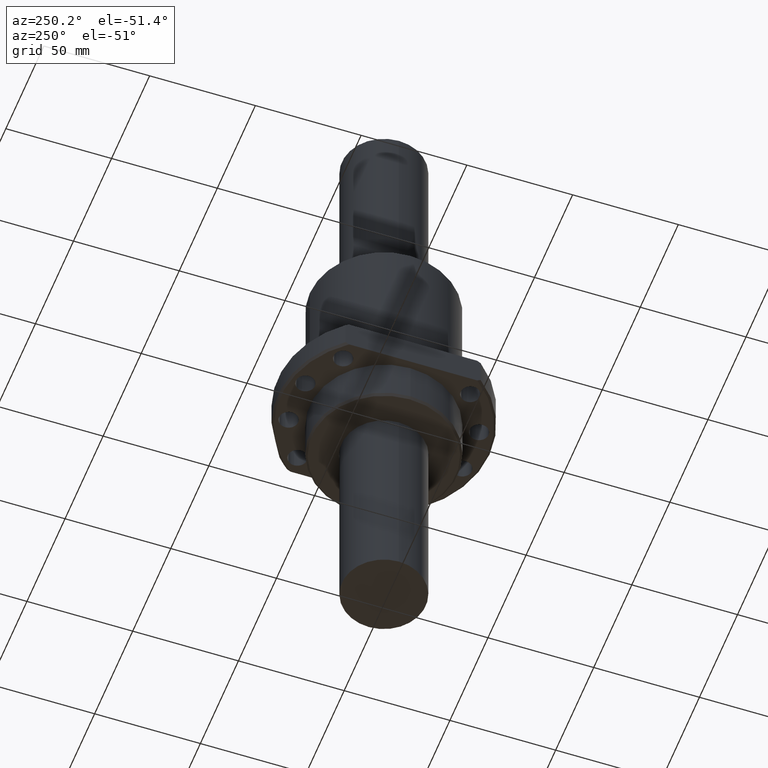
[diagram: clean part render]
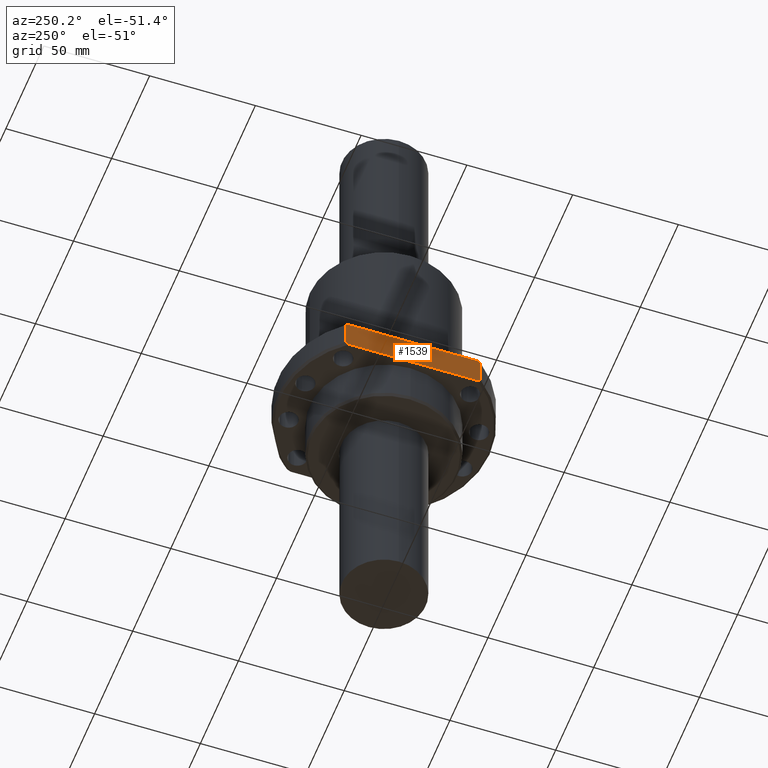
[diagram: same view with one face highlighted and labeled with its STEP entity id]
A machine part, auxiliary view. The second image highlights one B-rep face of the part: STEP entity #1539.
In plain terms, the highlighted planar face has unit normal (-1, 0, 0).
Its self-contained STEP definition (entity closure, byte-faithful):
#2 = VERTEX_POINT ( 'NONE', #1906 ) ;
#6 = DIRECTION ( 'NONE',  ( -0.0000000000000000000, -0.0000000000000000000, -1.000000000000000000 ) ) ;
#7 = CARTESIAN_POINT ( 'NONE',  ( 38.50000704099999600, -31.90218444000000300, -28.00000000000000400 ) ) ;
#10 = LINE ( 'NONE', #7, #1837 ) ;
#153 = EDGE_CURVE ( 'NONE', #668, #1543, #1781, .T. ) ;
#178 = CARTESIAN_POINT ( 'NONE',  ( 38.50000704099999600, -30.31088018918208600, -21.00000000000000000 ) ) ;
#180 = DIRECTION ( 'NONE',  ( 0.0000000000000000000, 1.000000000000000000, 0.0000000000000000000 ) ) ;
#182 = DIRECTION ( 'NONE',  ( 1.000000000000000000, 0.0000000000000000000, 0.0000000000000000000 ) ) ;
#184 = CARTESIAN_POINT ( 'NONE',  ( 38.50000704099999600, -31.90218444000000300, -35.00000000000000000 ) ) ;
#190 = PLANE ( 'NONE',  #1601 ) ;
#196 = B_SPLINE_CURVE_WITH_KNOTS ( 'NONE', 3,
 ( #1304, #1301, #1298, #1293 ),
 .UNSPECIFIED., .F., .F.,
 ( 4, 4 ),
 ( 2.649176163449070200E-012, 0.001879429564113751300 ),
 .UNSPECIFIED. ) ;
#209 = B_SPLINE_CURVE_WITH_KNOTS ( 'NONE', 3,
 ( #379, #374, #372, #370 ),
 .UNSPECIFIED., .F., .F.,
 ( 4, 4 ),
 ( 0.0000000000000000000, 0.001879427666044103000 ),
 .UNSPECIFIED. ) ;
#345 = CARTESIAN_POINT ( 'NONE',  ( 38.50000704099999600, 30.31088018918209700, -21.00000000000001100 ) ) ;
#347 = CARTESIAN_POINT ( 'NONE',  ( 38.50000704099999600, 30.84367402019713100, -21.32958061179821400 ) ) ;
#349 = CARTESIAN_POINT ( 'NONE',  ( 38.50000704099999600, 31.37404221249887100, -21.66302130742798600 ) ) ;
#352 = CARTESIAN_POINT ( 'NONE',  ( 38.50000679248939400, 31.90218651018611600, -22.00000058702431400 ) ) ;
#369 = VECTOR ( 'NONE', #1201, 1000.000000000000000 ) ;
#370 = CARTESIAN_POINT ( 'NONE',  ( 38.50000704099999600, -31.90218453886194200, -21.99999963708240000 ) ) ;
#372 = CARTESIAN_POINT ( 'NONE',  ( 38.50000704099999600, -31.37404085371158000, -21.66302045297273400 ) ) ;
#374 = CARTESIAN_POINT ( 'NONE',  ( 38.50000704189263700, -30.84367337605393500, -21.32958021281282200 ) ) ;
#379 = CARTESIAN_POINT ( 'NONE',  ( 38.50000704099999600, -30.31088018918208600, -21.00000000000000000 ) ) ;
#492 = EDGE_LOOP ( 'NONE', ( #1517, #1546, #1564, #1508, #1580, #1611, #1598, #1634 ) ) ;
#530 = VERTEX_POINT ( 'NONE', #1547 ) ;
#571 = DIRECTION ( 'NONE',  ( 0.0000000000000000000, 0.0000000000000000000, 1.000000000000000000 ) ) ;
#578 = CARTESIAN_POINT ( 'NONE',  ( 38.50000654397880600, 31.90218638453467300, -28.00000031550000300 ) ) ;
#581 = LINE ( 'NONE', #578, #924 ) ;
#628 = EDGE_CURVE ( 'NONE', #530, #1975, #196, .T. ) ;
#668 = VERTEX_POINT ( 'NONE', #1250 ) ;
#756 = EDGE_CURVE ( 'NONE', #2, #530, #1212, .T. ) ;
#794 = EDGE_CURVE ( 'NONE', #1045, #2, #1636, .T. ) ;
#804 = VERTEX_POINT ( 'NONE', #1089 ) ;
#853 = CARTESIAN_POINT ( 'NONE',  ( 38.50000704099999600, -31.90218511236125900, -34.00000042899586800 ) ) ;
#923 = VECTOR ( 'NONE', #1775, 1000.000000000000000 ) ;
#924 = VECTOR ( 'NONE', #571, 1000.000000000000000 ) ;
#1019 = FACE_OUTER_BOUND ( 'NONE', #492, .T. ) ;
#1045 = VERTEX_POINT ( 'NONE', #853 ) ;
#1089 = CARTESIAN_POINT ( 'NONE',  ( 38.50000704099999600, -31.90218453886194200, -21.99999963708240000 ) ) ;
#1120 = CARTESIAN_POINT ( 'NONE',  ( 38.50000704099999600, -30.31088019246431700, -34.99999999796963800 ) ) ;
#1123 = CARTESIAN_POINT ( 'NONE',  ( 38.50000704099999600, -30.84367342524107200, -34.67041975620517700 ) ) ;
#1124 = CARTESIAN_POINT ( 'NONE',  ( 38.50000703690807300, -31.37404095224378200, -34.33697948247385800 ) ) ;
#1131 = CARTESIAN_POINT ( 'NONE',  ( 38.50000704099999600, -31.90218511236125900, -34.00000042899586800 ) ) ;
#1201 = DIRECTION ( 'NONE',  ( 0.0000000000000000000, 1.000000000000000000, 0.0000000000000000000 ) ) ;
#1208 = CARTESIAN_POINT ( 'NONE',  ( 38.50000704099999600, 1.166999996637940700E-006, -35.00000000000000000 ) ) ;
#1212 = LINE ( 'NONE', #1208, #369 ) ;
#1246 = EDGE_CURVE ( 'NONE', #1975, #1977, #581, .T. ) ;
#1250 = CARTESIAN_POINT ( 'NONE',  ( 38.50000704099999600, 30.31088018918209700, -21.00000000000001100 ) ) ;
#1293 = CARTESIAN_POINT ( 'NONE',  ( 38.50000679248939400, 31.90218631197631200, -33.99999985494221700 ) ) ;
#1298 = CARTESIAN_POINT ( 'NONE',  ( 38.50000704099999600, 31.37404192677675100, -34.33697887239255000 ) ) ;
#1301 = CARTESIAN_POINT ( 'NONE',  ( 38.50000704162721400, 30.84367390101818200, -34.67041946236504700 ) ) ;
#1304 = CARTESIAN_POINT ( 'NONE',  ( 38.50000704099999600, 30.31088018693108000, -35.00000000139244300 ) ) ;
#1361 = B_SPLINE_CURVE_WITH_KNOTS ( 'NONE', 3,
 ( #352, #349, #347, #345 ),
 .UNSPECIFIED., .F., .F.,
 ( 4, 4 ),
 ( 8.299018265693427100E-011, 0.001879430042360865800 ),
 .UNSPECIFIED. ) ;
#1398 = EDGE_CURVE ( 'NONE', #1543, #804, #209, .T. ) ;
#1401 = EDGE_CURVE ( 'NONE', #1977, #668, #1361, .T. ) ;
#1413 = CARTESIAN_POINT ( 'NONE',  ( 38.50000679248939400, 31.90218651018611600, -22.00000058702431400 ) ) ;
#1424 = CARTESIAN_POINT ( 'NONE',  ( 38.50000679248939400, 31.90218631197631200, -33.99999985494221700 ) ) ;
#1508 = ORIENTED_EDGE ( 'NONE', *, *, #756, .T. ) ;
#1517 = ORIENTED_EDGE ( 'NONE', *, *, #1398, .T. ) ;
#1539 = ADVANCED_FACE ( 'NONE', ( #1019 ), #190, .T. ) ;
#1543 = VERTEX_POINT ( 'NONE', #178 ) ;
#1546 = ORIENTED_EDGE ( 'NONE', *, *, #1683, .T. ) ;
#1547 = CARTESIAN_POINT ( 'NONE',  ( 38.50000704099999600, 30.31088018693108000, -35.00000000139244300 ) ) ;
#1564 = ORIENTED_EDGE ( 'NONE', *, *, #794, .T. ) ;
#1580 = ORIENTED_EDGE ( 'NONE', *, *, #628, .T. ) ;
#1598 = ORIENTED_EDGE ( 'NONE', *, *, #1401, .T. ) ;
#1601 = AXIS2_PLACEMENT_3D ( 'NONE', #184, #182, #180 ) ;
#1611 = ORIENTED_EDGE ( 'NONE', *, *, #1246, .T. ) ;
#1634 = ORIENTED_EDGE ( 'NONE', *, *, #153, .T. ) ;
#1636 = B_SPLINE_CURVE_WITH_KNOTS ( 'NONE', 3,
 ( #1131, #1124, #1123, #1120 ),
 .UNSPECIFIED., .F., .F.,
 ( 4, 4 ),
 ( 0.0000000000000000000, 0.001879427844973231900 ),
 .UNSPECIFIED. ) ;
#1683 = EDGE_CURVE ( 'NONE', #804, #1045, #10, .T. ) ;
#1775 = DIRECTION ( 'NONE',  ( -0.0000000000000000000, -1.000000000000000000, -0.0000000000000000000 ) ) ;
#1779 = CARTESIAN_POINT ( 'NONE',  ( 38.50000704099999600, 1.166999996637940700E-006, -21.00000000000000000 ) ) ;
#1781 = LINE ( 'NONE', #1779, #923 ) ;
#1837 = VECTOR ( 'NONE', #6, 1000.000000000000000 ) ;
#1906 = CARTESIAN_POINT ( 'NONE',  ( 38.50000704099999600, -30.31088019246431700, -34.99999999796963800 ) ) ;
#1975 = VERTEX_POINT ( 'NONE', #1424 ) ;
#1977 = VERTEX_POINT ( 'NONE', #1413 ) ;